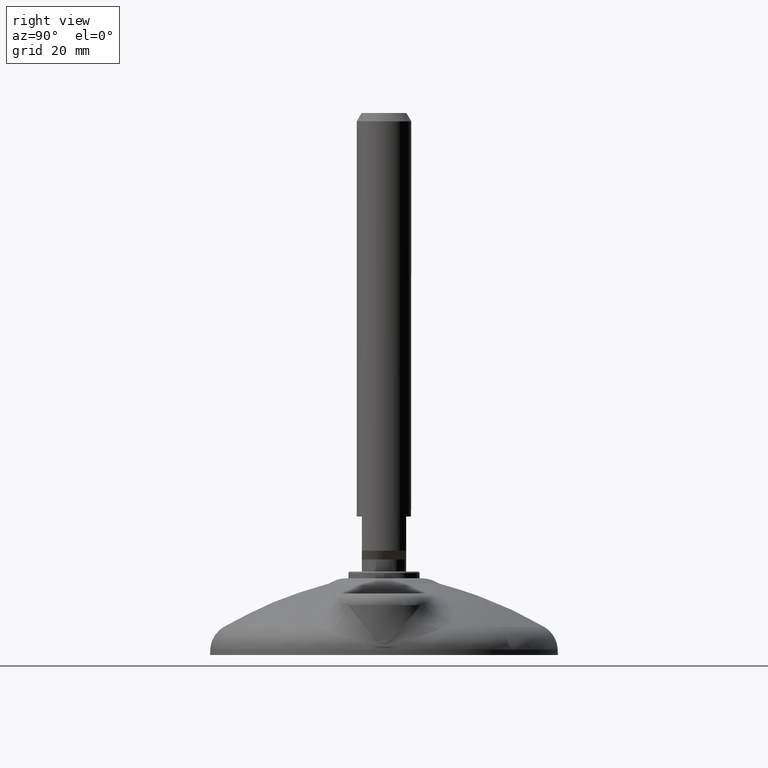
[diagram: clean part render]
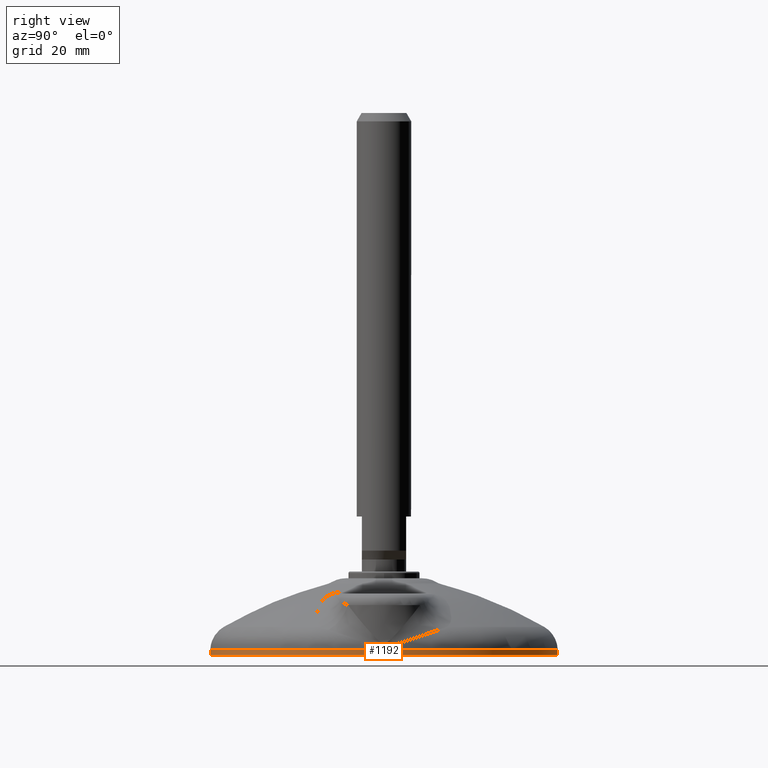
[diagram: same view with one face highlighted and labeled with its STEP entity id]
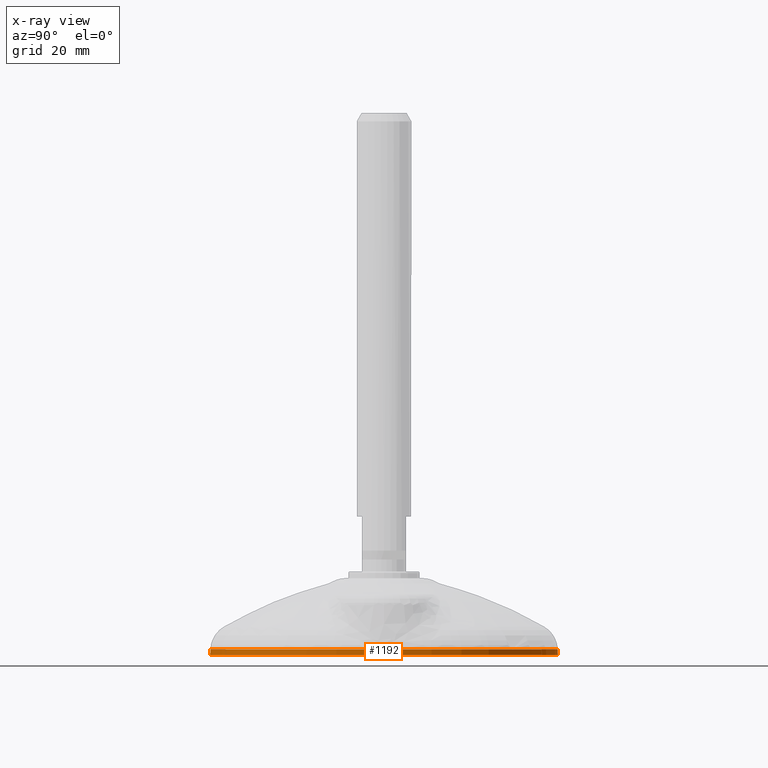
[diagram: x-ray of the same camera — body ghosted, the highlighted face saturated]
A machine part, right view. The second image highlights one B-rep face of the part: STEP entity #1192.
The next image is the same camera in x-ray: the body ghosted, the highlighted face saturated — about 0% of this face is hidden behind the body in this view.
In plain terms, the highlighted conical surface has half-angle 2 deg.
Its self-contained STEP definition (entity closure, byte-faithful):
#48=CONICAL_SURFACE('',#1327,50.9491029525027,0.0349003854585776);
#109=LINE('',#4611,#148);
#148=VECTOR('',#1534,50.9491029525027);
#213=FACE_OUTER_BOUND('',#299,.T.);
#299=EDGE_LOOP('',(#815,#816,#817,#818,#819));
#375=CIRCLE('',#1288,51.0059948985812);
#388=CIRCLE('',#1309,50.9491029525027);
#389=CIRCLE('',#1310,50.9491029525027);
#466=VERTEX_POINT('',#1796);
#487=VERTEX_POINT('',#2754);
#488=VERTEX_POINT('',#2756);
#570=EDGE_CURVE('',#466,#466,#375,.T.);
#595=EDGE_CURVE('',#487,#488,#388,.T.);
#596=EDGE_CURVE('',#488,#487,#389,.T.);
#632=EDGE_CURVE('',#466,#488,#109,.T.);
#815=ORIENTED_EDGE('',*,*,#570,.T.);
#816=ORIENTED_EDGE('',*,*,#632,.T.);
#817=ORIENTED_EDGE('',*,*,#595,.F.);
#818=ORIENTED_EDGE('',*,*,#596,.F.);
#819=ORIENTED_EDGE('',*,*,#632,.F.);
#1192=ADVANCED_FACE('',(#213),#48,.T.);
#1288=AXIS2_PLACEMENT_3D('',#1797,#1450,#1451);
#1309=AXIS2_PLACEMENT_3D('',#2757,#1494,#1495);
#1310=AXIS2_PLACEMENT_3D('',#2758,#1496,#1497);
#1327=AXIS2_PLACEMENT_3D('',#4610,#1532,#1533);
#1450=DIRECTION('center_axis',(0.,0.,1.));
#1451=DIRECTION('ref_axis',(0.,1.,-1.171453E-15));
#1494=DIRECTION('center_axis',(0.,1.171453E-15,1.));
#1495=DIRECTION('ref_axis',(0.,-1.,1.171453E-15));
#1496=DIRECTION('center_axis',(0.,1.171453E-15,1.));
#1497=DIRECTION('ref_axis',(0.,-1.,1.171453E-15));
#1532=DIRECTION('center_axis',(0.,-1.171453E-15,-1.));
#1533=DIRECTION('ref_axis',(0.,1.,-1.171453E-15));
#1534=DIRECTION('',(4.27319692553665E-18,0.03489330089714,0.999391043362157));
#1796=CARTESIAN_POINT('',(0.,-51.0059948985812,4.35762537165374E-14));
#1797=CARTESIAN_POINT('Origin',(0.,7.04756674839387E-23,4.35762537165374E-14));
#2754=CARTESIAN_POINT('',(-6.23946558502113E-15,50.9491029525027,1.62946181325611));
#2756=CARTESIAN_POINT('',(0.,-50.9491029525027,1.62946181325623));
#2757=CARTESIAN_POINT('Origin',(0.,3.817677E-15,1.62946181325617));
#2758=CARTESIAN_POINT('Origin',(0.,3.817677E-15,1.62946181325617));
#4610=CARTESIAN_POINT('Origin',(0.,1.908838E-15,1.62946181325617));
#4611=CARTESIAN_POINT('',(-6.23946558502113E-15,-50.9491029525027,1.62946181325623));